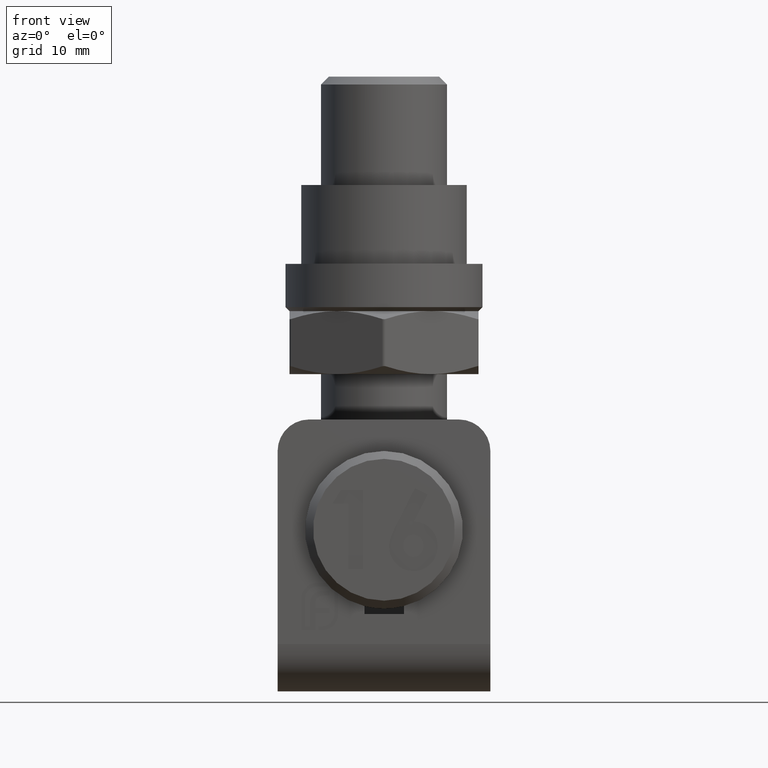
[diagram: clean part render]
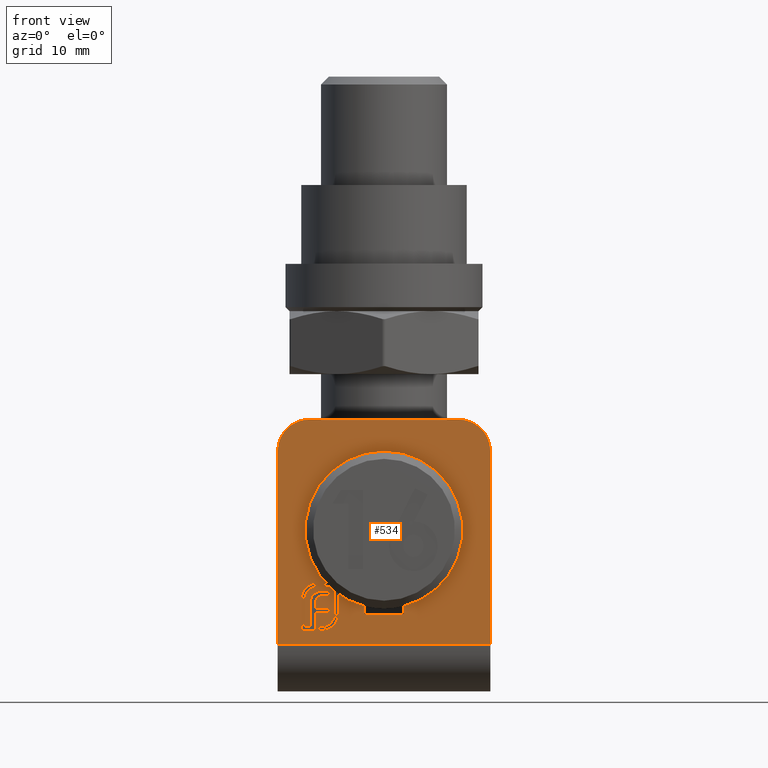
[diagram: same view with one face highlighted and labeled with its STEP entity id]
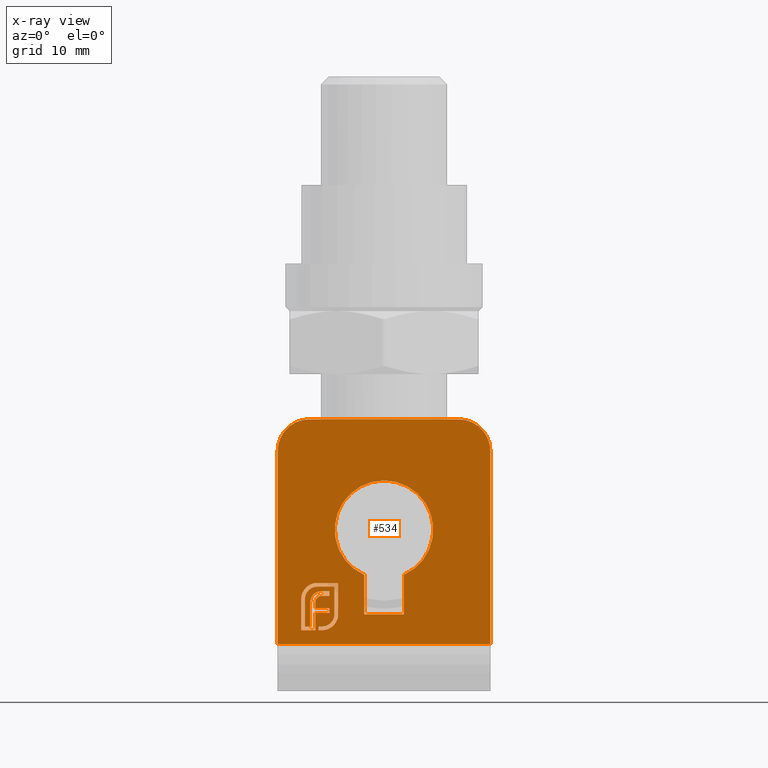
[diagram: x-ray of the same camera — body ghosted, the highlighted face saturated]
A machine part, front view. The second image highlights one B-rep face of the part: STEP entity #534.
The next image is the same camera in x-ray: the body ghosted, the highlighted face saturated — about 0% of this face is hidden behind the body in this view.
In plain terms, the highlighted planar face has unit normal (0, 1, 0).
Its self-contained STEP definition (entity closure, byte-faithful):
#5 = EDGE_CURVE ( 'NONE', #18163, #5967, #5241, .T. ) ;
#59 = VECTOR ( 'NONE', #1965, 1000.000000000000000 ) ;
#69 = B_SPLINE_CURVE_WITH_KNOTS ( 'NONE', 3,
 ( #2250, #14097, #3954, #9031, #15822, #3728, #5652, #19009, #394, #19090, #2113 ),
 .UNSPECIFIED., .F., .F.,
 ( 4, 1, 1, 1, 1, 1, 1, 1, 4 ),
 ( 0.000000000000000000, 0.1299413980652468770, 0.2553168128651460700, 0.3785843888810161983, 0.5009025839210318187, 0.6227719332849922518, 0.7450330940261352675, 0.8710940694072583090, 1.000000000000000000 ),
 .UNSPECIFIED. ) ;
#76 = CARTESIAN_POINT ( 'NONE',  ( -6.755556333100069644, -17.75000000000000355, -11.07417774667600163 ) ) ;
#116 = CARTESIAN_POINT ( 'NONE',  ( -10.26586670113579558, -17.75000000000000000, -7.083426976489406002 ) ) ;
#122 = CARTESIAN_POINT ( 'NONE',  ( -7.821599020293910520, -17.75000000000000355, -9.817704688593424933 ) ) ;
#124 = EDGE_CURVE ( 'NONE', #4884, #5236, #16393, .T. ) ;
#151 = ORIENTED_EDGE ( 'NONE', *, *, #12824, .T. ) ;
#164 = VECTOR ( 'NONE', #626, 1000.000000000000000 ) ;
#165 = FACE_OUTER_BOUND ( 'NONE', #11936, .T. ) ;
#183 = EDGE_CURVE ( 'NONE', #16525, #11652, #17194, .T. ) ;
#263 = EDGE_CURVE ( 'NONE', #7105, #9878, #6792, .T. ) ;
#282 = EDGE_CURVE ( 'NONE', #19448, #9444, #5753, .T. ) ;
#305 = ORIENTED_EDGE ( 'NONE', *, *, #19920, .T. ) ;
#324 = CARTESIAN_POINT ( 'NONE',  ( -8.730888733379986277, -17.75000000000000711, -9.213960811756479075 ) ) ;
#336 = CARTESIAN_POINT ( 'NONE',  ( -10.37757993741442952, -17.75000000000000711, -7.336567777588414607 ) ) ;
#394 = CARTESIAN_POINT ( 'NONE',  ( -10.02493872664897623, -17.75000000000000355, -7.875133732163876132 ) ) ;
#399 = EDGE_LOOP ( 'NONE', ( #11387, #439, #16423, #3491, #9257, #9169, #20864, #14989, #5272, #17474, #10705, #19052, #10754, #305, #21909, #9624, #17256, #13965, #20087, #14690, #14420, #151, #3705, #18915, #20812, #1482, #10161, #6999, #1714, #17720, #2109, #16968, #13169, #13153, #17973, #16271, #20466, #21476, #16826, #4911, #14795, #16105 ) ) ;
#418 = CARTESIAN_POINT ( 'NONE',  ( -8.664758572428270966, -17.75000000000000355, -8.222008397480760067 ) ) ;
#439 = ORIENTED_EDGE ( 'NONE', *, *, #13757, .T. ) ;
#534 = ADVANCED_FACE ( 'NONE', ( #165, #19796, #17688 ), #3106, .F. ) ;
#533 = CARTESIAN_POINT ( 'NONE',  ( -9.277074877536737318, -17.75000000000000355, -7.990552834149759143 ) ) ;
#626 = DIRECTION ( 'NONE',  ( 0.000000000000000000, 9.769142254860440022E-14, -1.000000000000000000 ) ) ;
#642 = EDGE_CURVE ( 'NONE', #21651, #14724, #2030, .T. ) ;
#767 = CARTESIAN_POINT ( 'NONE',  ( -8.617741513626178573, -17.75000000000000355, -6.473410785245657273 ) ) ;
#768 = CARTESIAN_POINT ( 'NONE',  ( -2.499999999999999556, -17.75000000000000355, -4.978219618694800452 ) ) ;
#836 = CARTESIAN_POINT ( 'NONE',  ( -9.328044631410703502, -17.74999999999999645, -6.729548657697040248 ) ) ;
#911 = ORIENTED_EDGE ( 'NONE', *, *, #7050, .T. ) ;
#964 = CARTESIAN_POINT ( 'NONE',  ( -6.085682295311405809, -17.75000000000000355, -10.96641007697690995 ) ) ;
#1029 = VERTEX_POINT ( 'NONE', #11208 ) ;
#1175 = DIRECTION ( 'NONE',  ( 0.000000000000000000, 0.000000000000000000, 1.000000000000000000 ) ) ;
#1183 = CARTESIAN_POINT ( 'NONE',  ( -5.821161651504548118, -17.75000000000000355, -5.998075577326805963 ) ) ;
#1213 = DIRECTION ( 'NONE',  ( -1.000000000000000000, 1.049278242188772596E-13, 0.000000000000000000 ) ) ;
#1267 = VECTOR ( 'NONE', #9837, 1000.000000000000000 ) ;
#1271 = CARTESIAN_POINT ( 'NONE',  ( -7.863848845346394612, -17.75000000000000355, -12.00000000000000355 ) ) ;
#1280 = CARTESIAN_POINT ( 'NONE',  ( -7.122531041991387646, -17.75000000000000355, -11.35362514467191808 ) ) ;
#1391 = B_SPLINE_CURVE_WITH_KNOTS ( 'NONE', 3,
 ( #16208, #19744, #12993, #19677, #15140, #10014, #6387 ),
 .UNSPECIFIED., .F., .F.,
 ( 4, 1, 1, 1, 4 ),
 ( 0.000000000000000000, 0.2556552308366630277, 0.5046914247193104996, 0.7519143346677191753, 1.000000000000000000 ),
 .UNSPECIFIED. ) ;
#1482 = ORIENTED_EDGE ( 'NONE', *, *, #15015, .T. ) ;
#1624 = CARTESIAN_POINT ( 'NONE',  ( -7.248474301829343602, -17.75000000000000000, -11.90345918669857639 ) ) ;
#1672 = CARTESIAN_POINT ( 'NONE',  ( -6.788621413575927299, -17.75000000000000355, -11.69384184744576949 ) ) ;
#1703 = CARTESIAN_POINT ( 'NONE',  ( -6.406890167705846295, -17.75000000000000711, -10.56668142725440696 ) ) ;
#1714 = ORIENTED_EDGE ( 'NONE', *, *, #12294, .T. ) ;
#1871 = CARTESIAN_POINT ( 'NONE',  ( -9.466892932120362758, -17.75000000000000000, -6.262596221133663654 ) ) ;
#1883 = CARTESIAN_POINT ( 'NONE',  ( 13.50000000000000000, -17.75000000000000000, -13.75000000000001243 ) ) ;
#1931 = CARTESIAN_POINT ( 'NONE',  ( -9.540041391318965225, -17.75000000000000711, -6.308552805227909843 ) ) ;
#1935 = CARTESIAN_POINT ( 'NONE',  ( -8.161434569629109959, -17.75000000000000355, -7.701539538138562513 ) ) ;
#1965 = DIRECTION ( 'NONE',  ( -0.000000000000000000, 1.005636797667713793E-16, -1.000000000000000000 ) ) ;
#1967 = CARTESIAN_POINT ( 'NONE',  ( -7.731588523442967542, -17.75000000000000355, -7.635409377186848090 ) ) ;
#2030 = B_SPLINE_CURVE_WITH_KNOTS ( 'NONE', 3,
 ( #7002, #17144, #15254, #3470, #8640, #18761, #6924 ),
 .UNSPECIFIED., .F., .F.,
 ( 4, 1, 1, 1, 4 ),
 ( 0.000000000000000000, 0.2272979020928524163, 0.4678675333846092355, 0.7258957337886734473, 1.000000000000000000 ),
 .UNSPECIFIED. ) ;
#2104 = VERTEX_POINT ( 'NONE', #2149 ) ;
#2109 = ORIENTED_EDGE ( 'NONE', *, *, #5331, .T. ) ;
#2113 = CARTESIAN_POINT ( 'NONE',  ( -10.02899930020993757, -17.75000000000000355, -8.032190342897134627 ) ) ;
#2149 = CARTESIAN_POINT ( 'NONE',  ( -8.301042687193843861, -17.75000000000000711, -11.52851644506648654 ) ) ;
#2167 = DIRECTION ( 'NONE',  ( 1.000000000000000000, 0.000000000000000000, 0.000000000000000000 ) ) ;
#2228 = CARTESIAN_POINT ( 'NONE',  ( -8.161434569629109959, -17.75000000000000355, -7.701539538138562513 ) ) ;
#2244 = VERTEX_POINT ( 'NONE', #3089 ) ;
#2250 = CARTESIAN_POINT ( 'NONE',  ( -9.566088173547935725, -17.75000000000000355, -6.932470258922326600 ) ) ;
#2332 = VERTEX_POINT ( 'NONE', #5443 ) ;
#2386 = VERTEX_POINT ( 'NONE', #324 ) ;
#2396 = CARTESIAN_POINT ( 'NONE',  ( -8.730888733379984501, -17.75000000000000355, -9.817704688593424933 ) ) ;
#2417 = LINE ( 'NONE', #9270, #19912 ) ;
#2444 = LINE ( 'NONE', #3861, #5635 ) ;
#2454 = EDGE_CURVE ( 'NONE', #5157, #3220, #7115, .T. ) ;
#2463 = CARTESIAN_POINT ( 'NONE',  ( -5.821161651504548118, -17.75000000000000355, -7.981980405878238649 ) ) ;
#2565 = VECTOR ( 'NONE', #16144, 1000.000000000000000 ) ;
#2566 = CARTESIAN_POINT ( 'NONE',  ( 2.499999999999999556, -17.75000000000000355, -4.978219618694800452 ) ) ;
#2577 = VERTEX_POINT ( 'NONE', #2396 ) ;
#2588 = VERTEX_POINT ( 'NONE', #12974 ) ;
#2603 = ORIENTED_EDGE ( 'NONE', *, *, #19382, .F. ) ;
#2606 = LINE ( 'NONE', #16303, #11047 ) ;
#2628 = LINE ( 'NONE', #14732, #3435 ) ;
#2637 = CARTESIAN_POINT ( 'NONE',  ( -8.730302266119048582, -17.75000000000000711, -8.613038462690964181 ) ) ;
#2712 = CARTESIAN_POINT ( 'NONE',  ( -7.293170048985303744, -17.75000000000000355, -11.91672498250525258 ) ) ;
#2731 = CARTESIAN_POINT ( 'NONE',  ( -6.755556333100069644, -17.75000000000000355, -11.07417774667600163 ) ) ;
#2740 = CARTESIAN_POINT ( 'NONE',  ( 13.50000000000000000, -17.75000000000000000, -19.75000000000001421 ) ) ;
#2796 = VERTEX_POINT ( 'NONE', #18686 ) ;
#2808 = CARTESIAN_POINT ( 'NONE',  ( -7.810305500201184969, -17.75000000000000711, -11.52704658514475433 ) ) ;
#2837 = VECTOR ( 'NONE', #6723, 1000.000000000000000 ) ;
#2956 = CARTESIAN_POINT ( 'NONE',  ( -10.50048285514345636, -17.75000000000000355, -10.01609517144856909 ) ) ;
#3027 = B_SPLINE_CURVE_WITH_KNOTS ( 'NONE', 3,
 ( #3751, #17350, #14119, #5674, #17426, #20707, #418 ),
 .UNSPECIFIED., .F., .F.,
 ( 4, 1, 1, 1, 4 ),
 ( 0.000000000000000000, 0.2455219258146091321, 0.4921953144302168015, 0.7406999461853225331, 0.9999999999999998890 ),
 .UNSPECIFIED. ) ;
#3084 = VERTEX_POINT ( 'NONE', #3383 ) ;
#3089 = CARTESIAN_POINT ( 'NONE',  ( 13.50000000000000000, -17.75000000000000355, 10.75000000000000178 ) ) ;
#3092 = CARTESIAN_POINT ( 'NONE',  ( -9.384842547235829002, -17.75000000000000355, -8.751049685094475450 ) ) ;
#3101 = EDGE_CURVE ( 'NONE', #11138, #13826, #10722, .T. ) ;
#3106 = PLANE ( 'NONE',  #13910 ) ;
#3175 = CARTESIAN_POINT ( 'NONE',  ( -6.296649209880341935, -17.75000000000000355, -10.12295973285852746 ) ) ;
#3180 = CARTESIAN_POINT ( 'NONE',  ( -7.339108003671981351, -17.75000000000000000, -11.92978154989058304 ) ) ;
#3210 = VECTOR ( 'NONE', #18835, 1000.000000000000000 ) ;
#3220 = VERTEX_POINT ( 'NONE', #15161 ) ;
#3281 = VECTOR ( 'NONE', #21085, 1000.000000000000000 ) ;
#3335 = CARTESIAN_POINT ( 'NONE',  ( -9.220122762487115153, -17.75000000000000355, -7.836782695566828494 ) ) ;
#3383 = CARTESIAN_POINT ( 'NONE',  ( -10.41720783764870539, -17.75000000000000355, -7.470083974807561589 ) ) ;
#3413 = VECTOR ( 'NONE', #2167, 1000.000000000000000 ) ;
#3429 = CARTESIAN_POINT ( 'NONE',  ( -5.821161651504548118, -17.75000000000000355, -9.965885234429674000 ) ) ;
#3435 = VECTOR ( 'NONE', #21346, 1000.000000000000000 ) ;
#3470 = CARTESIAN_POINT ( 'NONE',  ( -8.037234379043823651, -17.75000000000000355, -7.046654734836388378 ) ) ;
#3491 = ORIENTED_EDGE ( 'NONE', *, *, #20658, .T. ) ;
#3548 = DIRECTION ( 'NONE',  ( 1.000000000000000000, -0.000000000000000000, -0.000000000000000000 ) ) ;
#3594 = EDGE_CURVE ( 'NONE', #2332, #4621, #20123, .T. ) ;
#3686 = VECTOR ( 'NONE', #18419, 1000.000000000000000 ) ;
#3702 = CARTESIAN_POINT ( 'NONE',  ( -8.833224457386100070, -17.75000000000000711, -7.348816899581506412 ) ) ;
#3705 = ORIENTED_EDGE ( 'NONE', *, *, #642, .T. ) ;
#3728 = CARTESIAN_POINT ( 'NONE',  ( -9.916607279024331589, -17.75000000000000355, -7.433212829497058749 ) ) ;
#3751 = CARTESIAN_POINT ( 'NONE',  ( -8.466368089573128586, -17.75000000000000711, -7.899930020993705782 ) ) ;
#3861 = CARTESIAN_POINT ( 'NONE',  ( -10.02899930020993580, -17.75000000000000000, -9.780353393981805254 ) ) ;
#3882 = CIRCLE ( 'NONE', #9413, 4.000000000000000000 ) ;
#3891 = EDGE_CURVE ( 'NONE', #2104, #14562, #2606, .T. ) ;
#3954 = CARTESIAN_POINT ( 'NONE',  ( -9.676463377731469251, -17.75000000000000355, -7.045108110135097412 ) ) ;
#4134 = DIRECTION ( 'NONE',  ( 0.000000000000000000, 0.000000000000000000, 1.000000000000000000 ) ) ;
#4143 = CARTESIAN_POINT ( 'NONE',  ( -9.384842547235829002, -17.75000000000000355, -11.52851644506648476 ) ) ;
#4155 = CARTESIAN_POINT ( 'NONE',  ( -9.063188098163522000, -17.75000000000000000, -6.583575515572735348 ) ) ;
#4201 = B_SPLINE_CURVE_WITH_KNOTS ( 'NONE', 3,
 ( #11660, #16830, #16911, #6484, #18531, #1703, #11594, #8124, #3175, #13390, #16699 ),
 .UNSPECIFIED., .F., .F.,
 ( 4, 1, 1, 1, 1, 1, 1, 1, 4 ),
 ( 0.000000000000000000, 0.1306449944096421123, 0.2560864575269015120, 0.3794856402491265657, 0.5015567681336506878, 0.6239904245018632611, 0.7465085164980392873, 0.8718400121249293422, 1.000000000000000000 ),
 .UNSPECIFIED. ) ;
#4215 = LINE ( 'NONE', #17328, #17254 ) ;
#4218 = VERTEX_POINT ( 'NONE', #21535 ) ;
#4264 = EDGE_CURVE ( 'NONE', #2244, #16278, #17212, .T. ) ;
#4319 = CARTESIAN_POINT ( 'NONE',  ( -8.664758572428270966, -17.75000000000000355, -8.222008397480760067 ) ) ;
#4342 = LINE ( 'NONE', #2740, #21622 ) ;
#4361 = CARTESIAN_POINT ( 'NONE',  ( -6.868665694668743882, -17.75000000000000355, -11.18262136189365741 ) ) ;
#4397 = VERTEX_POINT ( 'NONE', #1672 ) ;
#4416 = VERTEX_POINT ( 'NONE', #4832 ) ;
#4519 = CARTESIAN_POINT ( 'NONE',  ( 0.000000000000000000, -17.75000000000000355, 0.7500000000000006661 ) ) ;
#4521 = CARTESIAN_POINT ( 'NONE',  ( -9.942662701189640018, -17.75000000000000355, -12.00000000000000355 ) ) ;
#4553 = CARTESIAN_POINT ( 'NONE',  ( -8.400237928621413275, -17.75000000000000355, -7.130860741777470757 ) ) ;
#4586 = VECTOR ( 'NONE', #9131, 1000.000000000000000 ) ;
#4621 = VERTEX_POINT ( 'NONE', #14574 ) ;
#4636 = CARTESIAN_POINT ( 'NONE',  ( -7.623820853743875858, -17.75000000000000355, -7.023093072078379961 ) ) ;
#4650 = CARTESIAN_POINT ( 'NONE',  ( -7.401004846292215333, -17.75000000000000711, -11.46791200578304171 ) ) ;
#4651 = VERTEX_POINT ( 'NONE', #9876 ) ;
#4663 = VERTEX_POINT ( 'NONE', #19216 ) ;
#4716 = EDGE_CURVE ( 'NONE', #16278, #2588, #15852, .T. ) ;
#4730 = CARTESIAN_POINT ( 'NONE',  ( -8.082445766270121013, -17.75000000000000711, -12.00000000000000533 ) ) ;
#4737 = B_SPLINE_CURVE_WITH_KNOTS ( 'NONE', 3,
 ( #5344, #12121, #3702, #15570, #17299, #8787, #11056 ),
 .UNSPECIFIED., .F., .F.,
 ( 4, 1, 1, 1, 4 ),
 ( 0.000000000000000000, 0.2388191941079593761, 0.4814904364426349503, 0.7358073612774035377, 1.000000000000000000 ),
 .UNSPECIFIED. ) ;
#4738 = DIRECTION ( 'NONE',  ( -0.000000000000000000, 1.000000000000000000, 1.005636797667713793E-16 ) ) ;
#4832 = CARTESIAN_POINT ( 'NONE',  ( -8.730888733379984501, -17.75000000000000355, -11.52851644506648476 ) ) ;
#4867 = CARTESIAN_POINT ( 'NONE',  ( -7.430978871658751927, -17.75000000000000355, -11.95589325178936413 ) ) ;
#4884 = VERTEX_POINT ( 'NONE', #9001 ) ;
#4911 = ORIENTED_EDGE ( 'NONE', *, *, #6148, .T. ) ;
#5033 = VECTOR ( 'NONE', #18171, 1000.000000000000000 ) ;
#5157 = VERTEX_POINT ( 'NONE', #19104 ) ;
#5170 = CARTESIAN_POINT ( 'NONE',  ( 9.500000000000000000, -17.75000000000000355, 14.75000000000000355 ) ) ;
#5176 = CARTESIAN_POINT ( 'NONE',  ( -8.062550847223667105, -17.75000000000000000, -7.669126878879471754 ) ) ;
#5189 = CARTESIAN_POINT ( 'NONE',  ( -10.50048285514345636, -17.75000000000000355, -8.032190342897134627 ) ) ;
#5201 = CARTESIAN_POINT ( 'NONE',  ( -8.946424072778164316, -17.75000000000000355, -7.452939118264524154 ) ) ;
#5236 = VERTEX_POINT ( 'NONE', #768 ) ;
#5241 = LINE ( 'NONE', #2463, #14494 ) ;
#5270 = EDGE_CURVE ( 'NONE', #4397, #9879, #12659, .T. ) ;
#5272 = ORIENTED_EDGE ( 'NONE', *, *, #7339, .T. ) ;
#5331 = EDGE_CURVE ( 'NONE', #4663, #2386, #10506, .T. ) ;
#5344 = CARTESIAN_POINT ( 'NONE',  ( -8.946424072778164316, -17.75000000000000355, -7.452939118264524154 ) ) ;
#5443 = CARTESIAN_POINT ( 'NONE',  ( -8.723540937718686550, -17.75000000000000711, -12.00000000000000533 ) ) ;
#5529 = EDGE_CURVE ( 'NONE', #2588, #19007, #3882, .T. ) ;
#5539 = CARTESIAN_POINT ( 'NONE',  ( -10.02899930020993757, -17.75000000000000355, -8.032190342897134627 ) ) ;
#5626 = CARTESIAN_POINT ( 'NONE',  ( -10.45638291017541910, -17.75000000000000355, -7.606655400040919446 ) ) ;
#5635 = VECTOR ( 'NONE', #5641, 1000.000000000000000 ) ;
#5641 = DIRECTION ( 'NONE',  ( -1.679674656468082971E-14, 0.000000000000000000, -1.000000000000000000 ) ) ;
#5652 = CARTESIAN_POINT ( 'NONE',  ( -9.966620311571347202, -17.75000000000000711, -7.574853533517645232 ) ) ;
#5658 = LINE ( 'NONE', #122, #14409 ) ;
#5668 = LINE ( 'NONE', #7368, #4586 ) ;
#5674 = CARTESIAN_POINT ( 'NONE',  ( -8.584042568921914196, -17.75000000000000355, -8.046340680819405122 ) ) ;
#5699 = CARTESIAN_POINT ( 'NONE',  ( -8.327818283931977206, -17.75000000000000000, -7.783925783482635197 ) ) ;
#5753 = LINE ( 'NONE', #4730, #1267 ) ;
#5804 = CARTESIAN_POINT ( 'NONE',  ( -6.912309307207837428, -17.75000000000000355, -9.213960811756477298 ) ) ;
#5818 = DIRECTION ( 'NONE',  ( -1.000000000000000000, 0.000000000000000000, 0.000000000000000000 ) ) ;
#5826 = EDGE_CURVE ( 'NONE', #10711, #17075, #19516, .T. ) ;
#5863 = CARTESIAN_POINT ( 'NONE',  ( -9.453382333619950728, -17.75000000000000711, -6.821635180734846315 ) ) ;
#5888 = EDGE_LOOP ( 'NONE', ( #911, #17219, #11014, #6579 ) ) ;
#5907 = DIRECTION ( 'NONE',  ( -8.398373282340697265E-15, -3.359349312936278906E-14, 1.000000000000000000 ) ) ;
#5919 = CARTESIAN_POINT ( 'NONE',  ( -9.566088173547935725, -17.75000000000000355, -6.932470258922326600 ) ) ;
#5967 = VERTEX_POINT ( 'NONE', #3429 ) ;
#5997 = VECTOR ( 'NONE', #18773, 1000.000000000000000 ) ;
#6098 = DIRECTION ( 'NONE',  ( 8.670530009976833916E-17, -0.000000000000000000, -1.000000000000000000 ) ) ;
#6148 = EDGE_CURVE ( 'NONE', #7449, #3084, #19652, .T. ) ;
#6187 = VERTEX_POINT ( 'NONE', #19260 ) ;
#6344 = LINE ( 'NONE', #2956, #5033 ) ;
#6387 = CARTESIAN_POINT ( 'NONE',  ( -6.085682295311405809, -17.75000000000000355, -10.96641007697690995 ) ) ;
#6473 = B_SPLINE_CURVE_WITH_KNOTS ( 'NONE', 3,
 ( #8626, #20265, #16832, #11726, #8327, #1931, #18600 ),
 .UNSPECIFIED., .F., .F.,
 ( 4, 1, 1, 1, 4 ),
 ( 0.000000000000000000, 0.2502580117964922080, 0.4972880217287840576, 0.7465323960068208642, 1.000000000000000000 ),
 .UNSPECIFIED. ) ;
#6484 = CARTESIAN_POINT ( 'NONE',  ( -6.552190294746984556, -17.75000000000000711, -10.83358292851261950 ) ) ;
#6509 = CARTESIAN_POINT ( 'NONE',  ( -13.50000000000000000, -17.75000000000000000, -13.75000000000001243 ) ) ;
#6578 = DIRECTION ( 'NONE',  ( -1.000000000000000000, 0.000000000000000000, 0.000000000000000000 ) ) ;
#6579 = ORIENTED_EDGE ( 'NONE', *, *, #5826, .T. ) ;
#6688 = CARTESIAN_POINT ( 'NONE',  ( -9.706920923722883288, -17.75000000000000355, -11.52851644506648654 ) ) ;
#6723 = DIRECTION ( 'NONE',  ( -1.000000000000000000, -0.000000000000000000, -0.000000000000000000 ) ) ;
#6739 = EDGE_CURVE ( 'NONE', #17551, #21740, #19359, .T. ) ;
#6792 = LINE ( 'NONE', #19705, #12088 ) ;
#6854 = CARTESIAN_POINT ( 'NONE',  ( -7.846333194691609059, -17.74999999999999645, -7.636505062055402249 ) ) ;
#6904 = CARTESIAN_POINT ( 'NONE',  ( -10.40394204184203097, -17.75000000000000711, -7.425388227651603223 ) ) ;
#6920 = CARTESIAN_POINT ( 'NONE',  ( -8.466368089573128586, -17.75000000000000711, -7.899930020993705782 ) ) ;
#6924 = CARTESIAN_POINT ( 'NONE',  ( -7.623820853743875858, -17.75000000000000355, -7.023093072078379961 ) ) ;
#6985 = VECTOR ( 'NONE', #10177, 1000.000000000000000 ) ;
#6999 = ORIENTED_EDGE ( 'NONE', *, *, #18040, .T. ) ;
#7002 = CARTESIAN_POINT ( 'NONE',  ( -8.400237928621413275, -17.75000000000000355, -7.130860741777470757 ) ) ;
#7050 = EDGE_CURVE ( 'NONE', #17075, #4884, #8296, .T. ) ;
#7077 = EDGE_CURVE ( 'NONE', #9879, #19448, #14377, .T. ) ;
#7105 = VERTEX_POINT ( 'NONE', #9978 ) ;
#7115 = B_SPLINE_CURVE_WITH_KNOTS ( 'NONE', 3,
 ( #12589, #21150, #767, #19427, #12517, #4155, #20994, #836, #5863, #9173, #5919 ),
 .UNSPECIFIED., .F., .F.,
 ( 4, 1, 1, 1, 1, 1, 1, 1, 4 ),
 ( 0.000000000000000000, 0.1301749492335597946, 0.2555374942785390568, 0.3790510438838181062, 0.5015150317641996480, 0.6227213693748332446, 0.7453059916511168836, 0.8707785314296303536, 1.000000000000000000 ),
 .UNSPECIFIED. ) ;
#7339 = EDGE_CURVE ( 'NONE', #9444, #2104, #5668, .T. ) ;
#7368 = CARTESIAN_POINT ( 'NONE',  ( -8.301042687193842085, -17.75000000000000355, -11.76425822253324505 ) ) ;
#7382 = CARTESIAN_POINT ( 'NONE',  ( -10.48097907931054884, -17.75000000000000000, -7.746992686877971046 ) ) ;
#7392 = CARTESIAN_POINT ( 'NONE',  ( -8.466368089573128586, -17.75000000000000711, -7.899930020993705782 ) ) ;
#7438 = VECTOR ( 'NONE', #9439, 1000.000000000000000 ) ;
#7449 = VERTEX_POINT ( 'NONE', #11514 ) ;
#7593 = LINE ( 'NONE', #14126, #2565 ) ;
#7676 = CARTESIAN_POINT ( 'NONE',  ( -8.459020293911827082, -17.75000000000000355, -5.998075577326805963 ) ) ;
#7679 = CARTESIAN_POINT ( 'NONE',  ( 9.500000000000000000, -17.75000000000000355, 10.75000000000000178 ) ) ;
#7723 = CARTESIAN_POINT ( 'NONE',  ( -8.730888733379984501, -17.75000000000000355, -8.651854443666904260 ) ) ;
#7766 = CARTESIAN_POINT ( 'NONE',  ( -6.793556041678007418, -17.75000000000000711, -11.11060997225183833 ) ) ;
#7799 = CARTESIAN_POINT ( 'NONE',  ( -8.696524016184479677, -17.75000000000000355, -8.320681102242794225 ) ) ;
#7988 = CARTESIAN_POINT ( 'NONE',  ( -6.993612215726181525, -17.74999999999999645, -11.27345663500204864 ) ) ;
#8054 = CARTESIAN_POINT ( 'NONE',  ( -7.572929676215229833, -17.75000000000000711, -11.98060464777251255 ) ) ;
#8124 = CARTESIAN_POINT ( 'NONE',  ( -6.319826060438183291, -17.75000000000000355, -10.27619761759197381 ) ) ;
#8201 = CARTESIAN_POINT ( 'NONE',  ( -7.293170048985303744, -17.75000000000000355, -11.91672498250525258 ) ) ;
#8210 = DIRECTION ( 'NONE',  ( 0.000000000000000000, -1.005636797667713793E-16, 1.000000000000000000 ) ) ;
#8246 = CARTESIAN_POINT ( 'NONE',  ( -6.788621413575927299, -17.75000000000000355, -11.69384184744576949 ) ) ;
#8276 = DIRECTION ( 'NONE',  ( -0.000000000000000000, 1.005636797667713793E-16, -1.000000000000000000 ) ) ;
#8296 = LINE ( 'NONE', #19880, #3281 ) ;
#8327 = CARTESIAN_POINT ( 'NONE',  ( -9.685119523797823149, -17.75000000000000355, -6.399700253424986052 ) ) ;
#8352 = CARTESIAN_POINT ( 'NONE',  ( -8.982167132013293198, -17.75000000000000355, -7.490018907292856021 ) ) ;
#8474 = CARTESIAN_POINT ( 'NONE',  ( -10.21815855270441986, -17.75000000000000355, -7.004810334021633444 ) ) ;
#8504 = EDGE_CURVE ( 'NONE', #9635, #2577, #5658, .T. ) ;
#8607 = EDGE_CURVE ( 'NONE', #3084, #2796, #21216, .T. ) ;
#8626 = CARTESIAN_POINT ( 'NONE',  ( -10.19432470258922230, -17.75000000000000355, -6.965535339398184256 ) ) ;
#8631 = CARTESIAN_POINT ( 'NONE',  ( -8.988128607820351945, -17.75000000000000711, -6.058217337289924842 ) ) ;
#8640 = CARTESIAN_POINT ( 'NONE',  ( -7.835263971533207972, -17.75000000000000355, -7.027688339224696712 ) ) ;
#8767 = CARTESIAN_POINT ( 'NONE',  ( -10.41720783764870539, -17.75000000000000355, -7.470083974807561589 ) ) ;
#8787 = CARTESIAN_POINT ( 'NONE',  ( -8.453440150458531477, -17.75000000000000711, -7.149582174132054213 ) ) ;
#8942 = CARTESIAN_POINT ( 'NONE',  ( -9.384842547235829002, -17.75000000000000355, -8.751049685094475450 ) ) ;
#9001 = CARTESIAN_POINT ( 'NONE',  ( -2.500000000000000000, -17.75000000000000355, -9.980000000000007532 ) ) ;
#9014 = CARTESIAN_POINT ( 'NONE',  ( -8.190847893842448713, -17.75000000000000355, -7.712916249222200982 ) ) ;
#9031 = CARTESIAN_POINT ( 'NONE',  ( -9.769521353321801271, -17.75000000000000711, -7.169346592754720859 ) ) ;
#9099 = VERTEX_POINT ( 'NONE', #5804 ) ;
#9131 = DIRECTION ( 'NONE',  ( 5.902190112311574406E-14, 1.180438022462314881E-13, 1.000000000000000000 ) ) ;
#9169 = ORIENTED_EDGE ( 'NONE', *, *, #5270, .T. ) ;
#9173 = CARTESIAN_POINT ( 'NONE',  ( -9.528152703301145721, -17.75000000000000000, -6.895164465242352492 ) ) ;
#9257 = ORIENTED_EDGE ( 'NONE', *, *, #12144, .T. ) ;
#9270 = CARTESIAN_POINT ( 'NONE',  ( -7.321948915325400264, -17.75000000000000000, -7.635409377186847202 ) ) ;
#9413 = AXIS2_PLACEMENT_3D ( 'NONE', #14648, #18376, #1175 ) ;
#9439 = DIRECTION ( 'NONE',  ( 0.000000000000000000, 0.000000000000000000, 1.000000000000000000 ) ) ;
#9444 = VERTEX_POINT ( 'NONE', #18565 ) ;
#9566 = EDGE_CURVE ( 'NONE', #12936, #11138, #2444, .T. ) ;
#9624 = ORIENTED_EDGE ( 'NONE', *, *, #11907, .T. ) ;
#9635 = VERTEX_POINT ( 'NONE', #10602 ) ;
#9722 = CARTESIAN_POINT ( 'NONE',  ( -8.675215145164512975, -17.75000000000000711, -8.254489552862832369 ) ) ;
#9764 = LINE ( 'NONE', #12277, #3413 ) ;
#9830 = VECTOR ( 'NONE', #19625, 1000.000000000000000 ) ;
#9837 = DIRECTION ( 'NONE',  ( -1.000000000000000000, -1.307562117189005772E-13, -6.537810585945028861E-14 ) ) ;
#9846 = CARTESIAN_POINT ( 'NONE',  ( 13.50000000000000000, -17.75000000000000000, -19.75000000000001421 ) ) ;
#9876 = CARTESIAN_POINT ( 'NONE',  ( -8.664758572428270966, -17.75000000000000355, -8.222008397480760067 ) ) ;
#9878 = VERTEX_POINT ( 'NONE', #13089 ) ;
#9879 = VERTEX_POINT ( 'NONE', #2712 ) ;
#9884 = CARTESIAN_POINT ( 'NONE',  ( -6.906513050667147269, -17.75000000000000000, -11.76538384599234455 ) ) ;
#9978 = CARTESIAN_POINT ( 'NONE',  ( -6.292645206438068683, -17.75000000000000355, -9.965885234429674000 ) ) ;
#10014 = CARTESIAN_POINT ( 'NONE',  ( -6.045126794699251960, -17.75000000000000000, -10.88982710312204105 ) ) ;
#10101 = EDGE_CURVE ( 'NONE', #4218, #12022, #14092, .T. ) ;
#10148 = ORIENTED_EDGE ( 'NONE', *, *, #4264, .T. ) ;
#10161 = ORIENTED_EDGE ( 'NONE', *, *, #16713, .T. ) ;
#10177 = DIRECTION ( 'NONE',  ( 1.000000000000000000, 0.000000000000000000, -4.336302939657541104E-14 ) ) ;
#10319 = CARTESIAN_POINT ( 'NONE',  ( -13.50000000000000000, -17.75000000000000000, -19.75000000000001421 ) ) ;
#10356 = LINE ( 'NONE', #16377, #9830 ) ;
#10374 = VECTOR ( 'NONE', #13333, 1000.000000000000000 ) ;
#10416 = CARTESIAN_POINT ( 'NONE',  ( -7.731588523442967542, -17.75000000000000355, -7.635409377186848090 ) ) ;
#10504 = CARTESIAN_POINT ( 'NONE',  ( -10.41720783764870539, -17.75000000000000355, -7.470083974807561589 ) ) ;
#10506 = LINE ( 'NONE', #10552, #164 ) ;
#10552 = CARTESIAN_POINT ( 'NONE',  ( -8.730888733379988054, -17.75000000000000711, -8.932907627711692555 ) ) ;
#10602 = CARTESIAN_POINT ( 'NONE',  ( -6.912309307207837428, -17.75000000000000355, -9.817704688593424933 ) ) ;
#10664 = CARTESIAN_POINT ( 'NONE',  ( -9.384036193079163368, -17.75000000000000355, -8.680353457168726194 ) ) ;
#10705 = ORIENTED_EDGE ( 'NONE', *, *, #20005, .T. ) ;
#10711 = VERTEX_POINT ( 'NONE', #2566 ) ;
#10722 = LINE ( 'NONE', #6688, #6985 ) ;
#10754 = ORIENTED_EDGE ( 'NONE', *, *, #263, .T. ) ;
#10866 = B_SPLINE_CURVE_WITH_KNOTS ( 'NONE', 3,
 ( #2228, #9014, #21042, #5699, #21270, #10877, #7392 ),
 .UNSPECIFIED., .F., .F.,
 ( 4, 1, 1, 1, 4 ),
 ( 0.000000000000000000, 0.2571485471612710016, 0.5083415440098223437, 0.7546122201496910931, 1.000000000000000000 ),
 .UNSPECIFIED. ) ;
#10877 = CARTESIAN_POINT ( 'NONE',  ( -8.445396374081706625, -17.75000000000000711, -7.878326199893674442 ) ) ;
#10993 = B_SPLINE_CURVE_WITH_KNOTS ( 'NONE', 3,
 ( #4319, #9722, #7799, #21610, #11270, #2637, #7723 ),
 .UNSPECIFIED., .F., .F.,
 ( 4, 1, 1, 1, 4 ),
 ( 0.000000000000000000, 0.2340869717720978904, 0.4770328878082502611, 0.7336123720772043111, 1.000000000000000000 ),
 .UNSPECIFIED. ) ;
#11014 = ORIENTED_EDGE ( 'NONE', *, *, #15715, .T. ) ;
#11047 = VECTOR ( 'NONE', #21263, 1000.000000000000000 ) ;
#11056 = CARTESIAN_POINT ( 'NONE',  ( -8.400237928621413275, -17.75000000000000355, -7.130860741777470757 ) ) ;
#11138 = VERTEX_POINT ( 'NONE', #13204 ) ;
#11146 = LINE ( 'NONE', #11312, #19141 ) ;
#11162 = CARTESIAN_POINT ( 'NONE',  ( -7.259139959507012740, -17.75000000000000711, -11.41648675173941108 ) ) ;
#11208 = CARTESIAN_POINT ( 'NONE',  ( -8.723540937718684773, -17.75000000000000355, -11.52851644506648476 ) ) ;
#11270 = CARTESIAN_POINT ( 'NONE',  ( -8.729150924773961151, -17.75000000000000711, -8.536835668904450003 ) ) ;
#11312 = CARTESIAN_POINT ( 'NONE',  ( -8.723540937718686550, -17.75000000000000355, -11.76425822253324505 ) ) ;
#11367 = CARTESIAN_POINT ( 'NONE',  ( -9.384842547235830779, -17.75000000000000355, -10.13978306508048277 ) ) ;
#11384 = CARTESIAN_POINT ( 'NONE',  ( -7.549759342559735131, -17.74999999999999645, -11.50297381078894787 ) ) ;
#11387 = ORIENTED_EDGE ( 'NONE', *, *, #10101, .T. ) ;
#11427 = CARTESIAN_POINT ( 'NONE',  ( 2.500000000000000000, -17.75000000000000355, -9.980000000000007532 ) ) ;
#11458 = CARTESIAN_POINT ( 'NONE',  ( -7.863848845346394612, -17.75000000000000355, -11.52851644506648476 ) ) ;
#11514 = CARTESIAN_POINT ( 'NONE',  ( -10.50048285514345636, -17.75000000000000355, -8.032190342897134627 ) ) ;
#11594 = CARTESIAN_POINT ( 'NONE',  ( -6.354550696384753117, -17.75000000000000355, -10.42475154894360934 ) ) ;
#11595 = VERTEX_POINT ( 'NONE', #19644 ) ;
#11649 = EDGE_CURVE ( 'NONE', #4621, #7449, #6344, .T. ) ;
#11652 = VERTEX_POINT ( 'NONE', #16543 ) ;
#11660 = CARTESIAN_POINT ( 'NONE',  ( -6.755556333100069644, -17.75000000000000355, -11.07417774667600163 ) ) ;
#11726 = CARTESIAN_POINT ( 'NONE',  ( -9.878549671360717710, -17.75000000000000355, -6.567388634723149821 ) ) ;
#11810 = CARTESIAN_POINT ( 'NONE',  ( -8.727613047087396936, -17.75000000000000000, -6.008145153962828999 ) ) ;
#11891 = CARTESIAN_POINT ( 'NONE',  ( -8.128985288601770165, -17.75000000000000355, -7.690903131422103911 ) ) ;
#11894 = ORIENTED_EDGE ( 'NONE', *, *, #5529, .T. ) ;
#11906 = CARTESIAN_POINT ( 'NONE',  ( -9.257836264961454731, -17.75000000000000711, -7.938608773437223931 ) ) ;
#11907 = EDGE_CURVE ( 'NONE', #3220, #12936, #69, .T. ) ;
#11935 = LINE ( 'NONE', #11367, #7438 ) ;
#11936 = EDGE_LOOP ( 'NONE', ( #2603, #10148, #14677, #11894, #21056, #16216 ) ) ;
#11943 = CARTESIAN_POINT ( 'NONE',  ( -10.32724805209346997, -17.75000000000000000, -7.207191128377359313 ) ) ;
#11960 = EDGE_CURVE ( 'NONE', #20837, #6187, #4215, .T. ) ;
#12022 = VERTEX_POINT ( 'NONE', #7676 ) ;
#12026 = CARTESIAN_POINT ( 'NONE',  ( -7.956895859234475843, -17.75000000000000711, -7.651954961540684330 ) ) ;
#12088 = VECTOR ( 'NONE', #5907, 1000.000000000000000 ) ;
#12121 = CARTESIAN_POINT ( 'NONE',  ( -8.908892656044782754, -17.75000000000000711, -7.418417319165985013 ) ) ;
#12144 = EDGE_CURVE ( 'NONE', #15803, #4397, #12967, .T. ) ;
#12193 = CARTESIAN_POINT ( 'NONE',  ( -10.43026732860424843, -17.75000000000000355, -7.515611734619724871 ) ) ;
#12256 = B_SPLINE_CURVE_WITH_KNOTS ( 'NONE', 3,
 ( #11458, #2808, #17948, #11384, #4650, #11162, #1280, #7988, #4361, #7766, #2731 ),
 .UNSPECIFIED., .F., .F.,
 ( 4, 1, 1, 1, 1, 1, 1, 1, 4 ),
 ( 0.000000000000000000, 0.1304902425292578660, 0.2570045222119936579, 0.3808172307134175538, 0.5023049142174768056, 0.6242765738051625490, 0.7466372728324800478, 0.8718179433199507722, 1.000000000000000000 ),
 .UNSPECIFIED. ) ;
#12277 = CARTESIAN_POINT ( 'NONE',  ( -7.140090972708188488, -17.75000000000000355, -5.998075577326805075 ) ) ;
#12294 = EDGE_CURVE ( 'NONE', #16436, #4651, #3027, .T. ) ;
#12421 = CARTESIAN_POINT ( 'NONE',  ( -6.131537612055804942, -17.75000000000000355, -11.04083764331830864 ) ) ;
#12517 = CARTESIAN_POINT ( 'NONE',  ( -8.921194426554215795, -17.75000000000000711, -6.531273296374533466 ) ) ;
#12589 = CARTESIAN_POINT ( 'NONE',  ( -8.459020293911827082, -17.75000000000000355, -6.469559132260325640 ) ) ;
#12659 = B_SPLINE_CURVE_WITH_KNOTS ( 'NONE', 3,
 ( #8246, #19907, #9884, #21711, #20187, #1624, #21785 ),
 .UNSPECIFIED., .F., .F.,
 ( 4, 1, 1, 1, 4 ),
 ( 0.000000000000000000, 0.2488520650224796960, 0.4981264545242570785, 0.7474499050962992719, 1.000000000000000000 ),
 .UNSPECIFIED. ) ;
#12824 = EDGE_CURVE ( 'NONE', #21740, #21651, #4737, .T. ) ;
#12936 = VERTEX_POINT ( 'NONE', #5539 ) ;
#12946 = CARTESIAN_POINT ( 'NONE',  ( -6.576704196016045501, -17.75000000000000355, -11.55535526177070693 ) ) ;
#12967 = B_SPLINE_CURVE_WITH_KNOTS ( 'NONE', 3,
 ( #964, #12421, #21505, #14135, #12946, #18021, #21423 ),
 .UNSPECIFIED., .F., .F.,
 ( 4, 1, 1, 1, 4 ),
 ( 0.000000000000000000, 0.2562051497895829755, 0.5061026040850942209, 0.7520689786812697619, 1.000000000000000000 ),
 .UNSPECIFIED. ) ;
#12974 = CARTESIAN_POINT ( 'NONE',  ( -9.500000000000000000, -17.75000000000000355, 14.75000000000000355 ) ) ;
#12993 = CARTESIAN_POINT ( 'NONE',  ( -5.831241962667206735, -17.75000000000000711, -10.23124653378254578 ) ) ;
#13082 = AXIS2_PLACEMENT_3D ( 'NONE', #7679, #16309, #4134 ) ;
#13089 = CARTESIAN_POINT ( 'NONE',  ( -6.292645206438069572, -17.75000000000000711, -6.469559132260326528 ) ) ;
#13153 = ORIENTED_EDGE ( 'NONE', *, *, #8504, .T. ) ;
#13169 = ORIENTED_EDGE ( 'NONE', *, *, #18195, .T. ) ;
#13204 = CARTESIAN_POINT ( 'NONE',  ( -10.02899930020993757, -17.75000000000000355, -11.52851644506648476 ) ) ;
#13276 = CARTESIAN_POINT ( 'NONE',  ( -7.375832750174947883, -17.75000000000000355, -6.469559132260325640 ) ) ;
#13333 = DIRECTION ( 'NONE',  ( 1.000000000000000000, 0.000000000000000000, -1.931625854938343884E-14 ) ) ;
#13390 = CARTESIAN_POINT ( 'NONE',  ( -6.293989765731295094, -17.75000000000000355, -10.01863143698325587 ) ) ;
#13401 = VECTOR ( 'NONE', #6098, 1000.000000000000000 ) ;
#13498 = CARTESIAN_POINT ( 'NONE',  ( -9.277074877536737318, -17.75000000000000355, -7.990552834149759143 ) ) ;
#13688 = CARTESIAN_POINT ( 'NONE',  ( -9.236458284383470385, -17.74999999999999289, -6.141361441952851941 ) ) ;
#13705 = VECTOR ( 'NONE', #3548, 1000.000000000000000 ) ;
#13757 = EDGE_CURVE ( 'NONE', #12022, #18163, #9764, .T. ) ;
#13826 = VERTEX_POINT ( 'NONE', #4143 ) ;
#13845 = LINE ( 'NONE', #10319, #59 ) ;
#13910 = AXIS2_PLACEMENT_3D ( 'NONE', #9846, #4738, #8210 ) ;
#13965 = ORIENTED_EDGE ( 'NONE', *, *, #3101, .T. ) ;
#14080 = CARTESIAN_POINT ( 'NONE',  ( -9.294240470500298557, -17.75000000000000711, -8.046175886661199428 ) ) ;
#14092 = B_SPLINE_CURVE_WITH_KNOTS ( 'NONE', 3,
 ( #1871, #21954, #13688, #8631, #11810, #16835, #20435 ),
 .UNSPECIFIED., .F., .F.,
 ( 4, 1, 1, 1, 4 ),
 ( 0.000000000000000000, 0.2474395555566214766, 0.4929798653999200031, 0.7426047681273371115, 1.000000000000000000 ),
 .UNSPECIFIED. ) ;
#14097 = CARTESIAN_POINT ( 'NONE',  ( -9.603315954647548836, -17.75000000000000355, -6.970461194472555633 ) ) ;
#14119 = CARTESIAN_POINT ( 'NONE',  ( -8.530827191470978121, -17.75000000000000711, -7.968281207832333735 ) ) ;
#14126 = CARTESIAN_POINT ( 'NONE',  ( -8.727214835549332861, -17.75000000000000355, -11.52851644506648299 ) ) ;
#14135 = CARTESIAN_POINT ( 'NONE',  ( -6.389868758138796068, -17.75000000000000711, -11.38271610899181674 ) ) ;
#14340 = EDGE_CURVE ( 'NONE', #14724, #20837, #14790, .T. ) ;
#14377 = B_SPLINE_CURVE_WITH_KNOTS ( 'NONE', 3,
 ( #8201, #3180, #4867, #8054, #16542, #19858, #1271 ),
 .UNSPECIFIED., .F., .F.,
 ( 4, 1, 1, 1, 4 ),
 ( 0.000000000000000000, 0.2473874333444892604, 0.4947477175549537809, 0.7459427166409735577, 1.000000000000000000 ),
 .UNSPECIFIED. ) ;
#14409 = VECTOR ( 'NONE', #6578, 1000.000000000000000 ) ;
#14420 = ORIENTED_EDGE ( 'NONE', *, *, #6739, .T. ) ;
#14494 = VECTOR ( 'NONE', #17964, 1000.000000000000000 ) ;
#14560 = CARTESIAN_POINT ( 'NONE',  ( 2.500000000000000000, -17.75000000000000355, -9.980000000000007532 ) ) ;
#14562 = VERTEX_POINT ( 'NONE', #16164 ) ;
#14574 = CARTESIAN_POINT ( 'NONE',  ( -10.50048285514345636, -17.75000000000000355, -12.00000000000000355 ) ) ;
#14643 = CARTESIAN_POINT ( 'NONE',  ( -8.946424072778164316, -17.75000000000000355, -7.452939118264524154 ) ) ;
#14648 = CARTESIAN_POINT ( 'NONE',  ( -9.500000000000000000, -17.75000000000000355, 10.75000000000000178 ) ) ;
#14677 = ORIENTED_EDGE ( 'NONE', *, *, #4716, .T. ) ;
#14690 = ORIENTED_EDGE ( 'NONE', *, *, #18000, .T. ) ;
#14724 = VERTEX_POINT ( 'NONE', #4636 ) ;
#14732 = CARTESIAN_POINT ( 'NONE',  ( -6.912309307207837428, -17.75000000000000355, -9.515832750174951116 ) ) ;
#14790 = LINE ( 'NONE', #16939, #10374 ) ;
#14795 = ORIENTED_EDGE ( 'NONE', *, *, #8607, .T. ) ;
#14989 = ORIENTED_EDGE ( 'NONE', *, *, #282, .T. ) ;
#15015 = EDGE_CURVE ( 'NONE', #6187, #17599, #2417, .T. ) ;
#15033 = CARTESIAN_POINT ( 'NONE',  ( -6.912309307207838316, -17.75000000000000711, -7.023093072078380850 ) ) ;
#15140 = CARTESIAN_POINT ( 'NONE',  ( -5.964156831355759358, -17.74999999999999645, -10.73692748427462718 ) ) ;
#15161 = CARTESIAN_POINT ( 'NONE',  ( -9.566088173547935725, -17.75000000000000355, -6.932470258922326600 ) ) ;
#15184 = CARTESIAN_POINT ( 'NONE',  ( -9.054352313862302992, -17.75000000000000355, -7.564903692512985778 ) ) ;
#15254 = CARTESIAN_POINT ( 'NONE',  ( -8.224920149782075640, -17.75000000000000355, -7.080518217537133729 ) ) ;
#15354 = VECTOR ( 'NONE', #1213, 1000.000000000000000 ) ;
#15366 = CARTESIAN_POINT ( 'NONE',  ( -6.085682295311405809, -17.75000000000000355, -10.96641007697690995 ) ) ;
#15413 = B_SPLINE_CURVE_WITH_KNOTS ( 'NONE', 3,
 ( #10416, #15482, #6854, #12026, #5176, #11891, #1935 ),
 .UNSPECIFIED., .F., .F.,
 ( 4, 1, 1, 1, 4 ),
 ( 0.000000000000000000, 0.2664516210972249222, 0.5206311952944926436, 0.7658567945036404145, 1.000000000000000000 ),
 .UNSPECIFIED. ) ;
#15416 = AXIS2_PLACEMENT_3D ( 'NONE', #4519, #16418, #18481 ) ;
#15425 = CARTESIAN_POINT ( 'NONE',  ( -7.863848845346394612, -17.75000000000000355, -12.00000000000000355 ) ) ;
#15482 = CARTESIAN_POINT ( 'NONE',  ( -7.770433106287033098, -17.75000000000000355, -7.635780300047007252 ) ) ;
#15570 = CARTESIAN_POINT ( 'NONE',  ( -8.701928174504695690, -17.75000000000000000, -7.261993628143982527 ) ) ;
#15655 = DIRECTION ( 'NONE',  ( -2.236619410981213033E-14, 0.000000000000000000, -1.000000000000000000 ) ) ;
#15715 = EDGE_CURVE ( 'NONE', #5236, #10711, #20362, .T. ) ;
#15803 = VERTEX_POINT ( 'NONE', #15366 ) ;
#15815 = CARTESIAN_POINT ( 'NONE',  ( -9.277074877536737318, -17.75000000000000355, -7.990552834149759143 ) ) ;
#15822 = CARTESIAN_POINT ( 'NONE',  ( -9.849633339452436687, -17.75000000000000355, -7.298331996335492455 ) ) ;
#15852 = LINE ( 'NONE', #21991, #2837 ) ;
#15868 = CARTESIAN_POINT ( 'NONE',  ( -10.49803755718266984, -17.75000000000000711, -7.888892478474770265 ) ) ;
#16105 = ORIENTED_EDGE ( 'NONE', *, *, #21405, .T. ) ;
#16144 = DIRECTION ( 'NONE',  ( 1.000000000000000000, 8.499153761740205870E-12, 0.000000000000000000 ) ) ;
#16164 = CARTESIAN_POINT ( 'NONE',  ( -7.863848845346394612, -17.75000000000000355, -11.52851644506648476 ) ) ;
#16208 = CARTESIAN_POINT ( 'NONE',  ( -5.821161651504548118, -17.75000000000000355, -9.965885234429674000 ) ) ;
#16216 = ORIENTED_EDGE ( 'NONE', *, *, #183, .T. ) ;
#16271 = ORIENTED_EDGE ( 'NONE', *, *, #16865, .T. ) ;
#16278 = VERTEX_POINT ( 'NONE', #5170 ) ;
#16303 = CARTESIAN_POINT ( 'NONE',  ( -8.082445766270117460, -17.75000000000000355, -11.52851644506648299 ) ) ;
#16309 = DIRECTION ( 'NONE',  ( 0.000000000000000000, -1.000000000000000000, -1.005636797667713793E-16 ) ) ;
#16377 = CARTESIAN_POINT ( 'NONE',  ( -8.730888733379984501, -17.75000000000000355, -10.67311056682995840 ) ) ;
#16393 = LINE ( 'NONE', #17150, #5997 ) ;
#16418 = DIRECTION ( 'NONE',  ( 0.000000000000000000, 1.000000000000000000, 0.000000000000000000 ) ) ;
#16423 = ORIENTED_EDGE ( 'NONE', *, *, #5, .T. ) ;
#16436 = VERTEX_POINT ( 'NONE', #6920 ) ;
#16525 = VERTEX_POINT ( 'NONE', #6509 ) ;
#16542 = CARTESIAN_POINT ( 'NONE',  ( -7.717292451794627972, -17.75000000000000711, -11.99758726462892433 ) ) ;
#16543 = CARTESIAN_POINT ( 'NONE',  ( 13.50000000000000000, -17.75000000000000000, -13.75000000000001243 ) ) ;
#16552 = VERTEX_POINT ( 'NONE', #76 ) ;
#16699 = CARTESIAN_POINT ( 'NONE',  ( -6.292645206438068683, -17.75000000000000355, -9.965885234429674000 ) ) ;
#16713 = EDGE_CURVE ( 'NONE', #17599, #11595, #15413, .T. ) ;
#16826 = ORIENTED_EDGE ( 'NONE', *, *, #11649, .T. ) ;
#16830 = CARTESIAN_POINT ( 'NONE',  ( -6.718359903634540942, -17.75000000000000355, -11.03532720734581218 ) ) ;
#16832 = CARTESIAN_POINT ( 'NONE',  ( -10.05206330701830275, -17.75000000000000355, -6.754157247358676841 ) ) ;
#16835 = CARTESIAN_POINT ( 'NONE',  ( -8.549461298914057039, -17.75000000000000355, -6.001466222160448893 ) ) ;
#16865 = EDGE_CURVE ( 'NONE', #4416, #1029, #7593, .T. ) ;
#16911 = CARTESIAN_POINT ( 'NONE',  ( -6.645448561737969051, -17.75000000000000355, -10.95917352817091484 ) ) ;
#16939 = CARTESIAN_POINT ( 'NONE',  ( -7.268065080475856199, -17.75000000000000711, -7.023093072078379073 ) ) ;
#16968 = ORIENTED_EDGE ( 'NONE', *, *, #21512, .T. ) ;
#17075 = VERTEX_POINT ( 'NONE', #11427 ) ;
#17144 = CARTESIAN_POINT ( 'NONE',  ( -8.342914360307938537, -17.75000000000000355, -7.114400271273743748 ) ) ;
#17150 = CARTESIAN_POINT ( 'NONE',  ( -2.499999999999999556, -17.75000000000000355, -4.978219618694800452 ) ) ;
#17194 = LINE ( 'NONE', #1883, #13705 ) ;
#17212 = CIRCLE ( 'NONE', #13082, 4.000000000000000000 ) ;
#17219 = ORIENTED_EDGE ( 'NONE', *, *, #124, .T. ) ;
#17254 = VECTOR ( 'NONE', #15655, 1000.000000000000000 ) ;
#17256 = ORIENTED_EDGE ( 'NONE', *, *, #9566, .T. ) ;
#17299 = CARTESIAN_POINT ( 'NONE',  ( -8.557855856204254152, -17.75000000000001421, -7.186325218019571359 ) ) ;
#17328 = CARTESIAN_POINT ( 'NONE',  ( -6.912309307207837428, -17.75000000000000355, -7.329251224632614026 ) ) ;
#17350 = CARTESIAN_POINT ( 'NONE',  ( -8.487820919967857591, -17.75000000000000355, -7.922678188053980719 ) ) ;
#17378 = CARTESIAN_POINT ( 'NONE',  ( -9.360016704211689742, -17.75000000000000355, -8.345681945137249258 ) ) ;
#17426 = CARTESIAN_POINT ( 'NONE',  ( -8.630862625216773054, -17.75000000000000355, -8.130384924302596517 ) ) ;
#17444 = B_SPLINE_CURVE_WITH_KNOTS ( 'NONE', 3,
 ( #8942, #10664, #20667, #17378, #19068, #14080, #533 ),
 .UNSPECIFIED., .F., .F.,
 ( 4, 1, 1, 1, 4 ),
 ( 0.000000000000000000, 0.2747959748008356740, 0.5318452979585361895, 0.7738357390492460741, 0.9999999999999998890 ),
 .UNSPECIFIED. ) ;
#17474 = ORIENTED_EDGE ( 'NONE', *, *, #3891, .T. ) ;
#17551 = VERTEX_POINT ( 'NONE', #15815 ) ;
#17599 = VERTEX_POINT ( 'NONE', #1967 ) ;
#17688 = FACE_BOUND ( 'NONE', #399, .T. ) ;
#17720 = ORIENTED_EDGE ( 'NONE', *, *, #20593, .T. ) ;
#17948 = CARTESIAN_POINT ( 'NONE',  ( -7.704850244927281544, -17.75000000000000711, -11.52415165109006523 ) ) ;
#17964 = DIRECTION ( 'NONE',  ( 1.528624777289347461E-14, 6.114499109157389842E-14, -1.000000000000000000 ) ) ;
#17973 = ORIENTED_EDGE ( 'NONE', *, *, #21803, .T. ) ;
#18000 = EDGE_CURVE ( 'NONE', #18331, #17551, #17444, .T. ) ;
#18021 = CARTESIAN_POINT ( 'NONE',  ( -6.717795261646378968, -17.75000000000000355, -11.64755739698834347 ) ) ;
#18040 = EDGE_CURVE ( 'NONE', #11595, #16436, #10866, .T. ) ;
#18163 = VERTEX_POINT ( 'NONE', #1183 ) ;
#18171 = DIRECTION ( 'NONE',  ( 3.057249554578601520E-14, 0.000000000000000000, 1.000000000000000000 ) ) ;
#18195 = EDGE_CURVE ( 'NONE', #9099, #9635, #2628, .T. ) ;
#18331 = VERTEX_POINT ( 'NONE', #3092 ) ;
#18376 = DIRECTION ( 'NONE',  ( 0.000000000000000000, -1.000000000000000000, -1.005636797667713793E-16 ) ) ;
#18381 = EDGE_CURVE ( 'NONE', #16552, #7105, #4201, .T. ) ;
#18419 = DIRECTION ( 'NONE',  ( -1.000000000000000000, 5.448175488287657000E-14, 2.724087744143828500E-14 ) ) ;
#18481 = DIRECTION ( 'NONE',  ( 0.000000000000000000, 0.000000000000000000, 1.000000000000000000 ) ) ;
#18531 = CARTESIAN_POINT ( 'NONE',  ( -6.471617862814118105, -17.75000000000000000, -10.70375276903396689 ) ) ;
#18565 = CARTESIAN_POINT ( 'NONE',  ( -8.301042687193842085, -17.75000000000000355, -12.00000000000000355 ) ) ;
#18600 = CARTESIAN_POINT ( 'NONE',  ( -9.466892932120362758, -17.75000000000000000, -6.262596221133663654 ) ) ;
#18668 = CARTESIAN_POINT ( 'NONE',  ( -7.821599020293912297, -17.75000000000000711, -9.213960811756479075 ) ) ;
#18686 = CARTESIAN_POINT ( 'NONE',  ( -10.19432470258922230, -17.75000000000000355, -6.965535339398184256 ) ) ;
#18761 = CARTESIAN_POINT ( 'NONE',  ( -7.695707259172065662, -17.75000000000000355, -7.024655370442992819 ) ) ;
#18773 = DIRECTION ( 'NONE',  ( 8.670530009976833916E-17, -0.000000000000000000, 1.000000000000000000 ) ) ;
#18835 = DIRECTION ( 'NONE',  ( 1.000000000000000000, 0.000000000000000000, 0.000000000000000000 ) ) ;
#18915 = ORIENTED_EDGE ( 'NONE', *, *, #14340, .T. ) ;
#19007 = VERTEX_POINT ( 'NONE', #20624 ) ;
#19009 = CARTESIAN_POINT ( 'NONE',  ( -10.00209559594794939, -17.75000000000000355, -7.722202159009794009 ) ) ;
#19052 = ORIENTED_EDGE ( 'NONE', *, *, #18381, .T. ) ;
#19068 = CARTESIAN_POINT ( 'NONE',  ( -9.329772844295510126, -17.75000000000000711, -8.161314297414786978 ) ) ;
#19090 = CARTESIAN_POINT ( 'NONE',  ( -10.02763574445981476, -17.75000000000000711, -7.979450147098467561 ) ) ;
#19104 = CARTESIAN_POINT ( 'NONE',  ( -8.459020293911827082, -17.75000000000000355, -6.469559132260325640 ) ) ;
#19141 = VECTOR ( 'NONE', #21585, 1000.000000000000000 ) ;
#19216 = CARTESIAN_POINT ( 'NONE',  ( -8.730888733379984501, -17.75000000000000355, -8.651854443666904260 ) ) ;
#19260 = CARTESIAN_POINT ( 'NONE',  ( -6.912309307207837428, -17.75000000000000355, -7.635409377186848090 ) ) ;
#19359 = B_SPLINE_CURVE_WITH_KNOTS ( 'NONE', 3,
 ( #13498, #11906, #3335, #20282, #15184, #8352, #5201 ),
 .UNSPECIFIED., .F., .F.,
 ( 4, 1, 1, 1, 4 ),
 ( 0.000000000000000000, 0.2605968594242243364, 0.5108487040965178361, 0.7577928974260942363, 0.9999999999999998890 ),
 .UNSPECIFIED. ) ;
#19382 = EDGE_CURVE ( 'NONE', #2244, #11652, #4342, .T. ) ;
#19427 = CARTESIAN_POINT ( 'NONE',  ( -8.772151588271389855, -17.75000000000000355, -6.496905422832097265 ) ) ;
#19448 = VERTEX_POINT ( 'NONE', #15425 ) ;
#19516 = LINE ( 'NONE', #14560, #13401 ) ;
#19625 = DIRECTION ( 'NONE',  ( 3.427078129729373070E-14, 6.854156259458746140E-14, -1.000000000000000000 ) ) ;
#19644 = CARTESIAN_POINT ( 'NONE',  ( -8.161434569629109959, -17.75000000000000355, -7.701539538138562513 ) ) ;
#19652 = B_SPLINE_CURVE_WITH_KNOTS ( 'NONE', 3,
 ( #5189, #20726, #15868, #7382, #5626, #12193, #10504 ),
 .UNSPECIFIED., .F., .F.,
 ( 4, 1, 1, 1, 4 ),
 ( 0.000000000000000000, 0.2514026055896926293, 0.5020703828466536178, 0.7510027753359493907, 1.000000000000000000 ),
 .UNSPECIFIED. ) ;
#19677 = CARTESIAN_POINT ( 'NONE',  ( -5.881718480584537723, -17.75000000000000355, -10.48959233252740830 ) ) ;
#19705 = CARTESIAN_POINT ( 'NONE',  ( -6.292645206438067795, -17.75000000000000355, -8.217722183344998044 ) ) ;
#19744 = CARTESIAN_POINT ( 'NONE',  ( -5.824551005897527389, -17.75000000000000711, -10.05510901643154398 ) ) ;
#19796 = FACE_BOUND ( 'NONE', #5888, .T. ) ;
#19858 = CARTESIAN_POINT ( 'NONE',  ( -7.814812561752064290, -17.75000000000000711, -11.99919272320349606 ) ) ;
#19880 = CARTESIAN_POINT ( 'NONE',  ( -2.500000000000000000, -17.75000000000000355, -9.980000000000007532 ) ) ;
#19907 = CARTESIAN_POINT ( 'NONE',  ( -6.827896408199375600, -17.75000000000000000, -11.71767569756096528 ) ) ;
#19912 = VECTOR ( 'NONE', #5818, 1000.000000000000000 ) ;
#19920 = EDGE_CURVE ( 'NONE', #9878, #5157, #21742, .T. ) ;
#20005 = EDGE_CURVE ( 'NONE', #14562, #16552, #12256, .T. ) ;
#20087 = ORIENTED_EDGE ( 'NONE', *, *, #21703, .T. ) ;
#20123 = LINE ( 'NONE', #4521, #15354 ) ;
#20187 = CARTESIAN_POINT ( 'NONE',  ( -7.159653851766154098, -17.75000000000000000, -11.87709708227097494 ) ) ;
#20265 = CARTESIAN_POINT ( 'NONE',  ( -10.14669946960781033, -17.75000000000000355, -6.894771722605674391 ) ) ;
#20282 = CARTESIAN_POINT ( 'NONE',  ( -9.144137172596057184, -17.74999999999999645, -7.694446797315327657 ) ) ;
#20326 = EDGE_CURVE ( 'NONE', #19007, #16525, #13845, .T. ) ;
#20338 = CARTESIAN_POINT ( 'NONE',  ( -10.19432470258922230, -17.75000000000000355, -6.965535339398184256 ) ) ;
#20362 = CIRCLE ( 'NONE', #15416, 6.250000000000000000 ) ;
#20435 = CARTESIAN_POINT ( 'NONE',  ( -8.459020293911827082, -17.75000000000000355, -5.998075577326805963 ) ) ;
#20466 = ORIENTED_EDGE ( 'NONE', *, *, #21285, .T. ) ;
#20593 = EDGE_CURVE ( 'NONE', #4651, #4663, #10993, .T. ) ;
#20624 = CARTESIAN_POINT ( 'NONE',  ( -13.50000000000000000, -17.75000000000000355, 10.75000000000000178 ) ) ;
#20658 = EDGE_CURVE ( 'NONE', #5967, #15803, #1391, .T. ) ;
#20667 = CARTESIAN_POINT ( 'NONE',  ( -9.382475560078548327, -17.75000000000000000, -8.543526647995248524 ) ) ;
#20707 = CARTESIAN_POINT ( 'NONE',  ( -8.653300918101830774, -17.75000000000000355, -8.191037435751532314 ) ) ;
#20726 = CARTESIAN_POINT ( 'NONE',  ( -10.49966696089347273, -17.75000000000000711, -7.984377804101307596 ) ) ;
#20812 = ORIENTED_EDGE ( 'NONE', *, *, #11960, .T. ) ;
#20837 = VERTEX_POINT ( 'NONE', #15033 ) ;
#20864 = ORIENTED_EDGE ( 'NONE', *, *, #7077, .T. ) ;
#20994 = CARTESIAN_POINT ( 'NONE',  ( -9.199405764646760630, -17.75000000000000711, -6.648507165961104803 ) ) ;
#21042 = CARTESIAN_POINT ( 'NONE',  ( -8.248993330828692905, -17.75000000000000711, -7.735406187204946882 ) ) ;
#21056 = ORIENTED_EDGE ( 'NONE', *, *, #20326, .T. ) ;
#21085 = DIRECTION ( 'NONE',  ( -1.000000000000000000, -0.000000000000000000, -0.000000000000000000 ) ) ;
#21150 = CARTESIAN_POINT ( 'NONE',  ( -8.512587470875242701, -17.75000000000000000, -6.470859035180918539 ) ) ;
#21216 = B_SPLINE_CURVE_WITH_KNOTS ( 'NONE', 3,
 ( #8767, #6904, #336, #11943, #116, #8474, #20338 ),
 .UNSPECIFIED., .F., .F.,
 ( 4, 1, 1, 1, 4 ),
 ( 0.000000000000000000, 0.2525500949037004506, 0.5018735454757436987, 0.7511479349775207481, 1.000000000000000000 ),
 .UNSPECIFIED. ) ;
#21263 = DIRECTION ( 'NONE',  ( 1.000000000000000000, 1.249875553195292560E-13, 0.000000000000000000 ) ) ;
#21270 = CARTESIAN_POINT ( 'NONE',  ( -8.403377487630768528, -17.75000000000000711, -7.835040827932571617 ) ) ;
#21285 = EDGE_CURVE ( 'NONE', #1029, #2332, #11146, .T. ) ;
#21346 = DIRECTION ( 'NONE',  ( 2.309552652643594521E-14, -9.238210610574378083E-14, -1.000000000000000000 ) ) ;
#21405 = EDGE_CURVE ( 'NONE', #2796, #4218, #6473, .T. ) ;
#21423 = CARTESIAN_POINT ( 'NONE',  ( -6.788621413575927299, -17.75000000000000355, -11.69384184744576949 ) ) ;
#21476 = ORIENTED_EDGE ( 'NONE', *, *, #3594, .T. ) ;
#21505 = CARTESIAN_POINT ( 'NONE',  ( -6.222119301122345014, -17.75000000000000000, -11.18786039119060050 ) ) ;
#21512 = EDGE_CURVE ( 'NONE', #2386, #9099, #21795, .T. ) ;
#21535 = CARTESIAN_POINT ( 'NONE',  ( -9.466892932120362758, -17.75000000000000000, -6.262596221133663654 ) ) ;
#21585 = DIRECTION ( 'NONE',  ( 0.000000000000000000, 0.000000000000000000, -1.000000000000000000 ) ) ;
#21610 = CARTESIAN_POINT ( 'NONE',  ( -8.716658345081462755, -17.74999999999999645, -8.425841373495288167 ) ) ;
#21622 = VECTOR ( 'NONE', #8276, 1000.000000000000000 ) ;
#21651 = VERTEX_POINT ( 'NONE', #4553 ) ;
#21703 = EDGE_CURVE ( 'NONE', #13826, #18331, #11935, .T. ) ;
#21711 = CARTESIAN_POINT ( 'NONE',  ( -7.030277202555102356, -17.75000000000000711, -11.82676519695002249 ) ) ;
#21740 = VERTEX_POINT ( 'NONE', #14643 ) ;
#21742 = LINE ( 'NONE', #13276, #3686 ) ;
#21785 = CARTESIAN_POINT ( 'NONE',  ( -7.293170048985303744, -17.75000000000000355, -11.91672498250525258 ) ) ;
#21795 = LINE ( 'NONE', #18668, #3210 ) ;
#21803 = EDGE_CURVE ( 'NONE', #2577, #4416, #10356, .T. ) ;
#21909 = ORIENTED_EDGE ( 'NONE', *, *, #2454, .T. ) ;
#21954 = CARTESIAN_POINT ( 'NONE',  ( -9.389884353999597977, -17.74999999999999645, -6.222080968522176292 ) ) ;
#21991 = CARTESIAN_POINT ( 'NONE',  ( 13.50000000000000000, -17.75000000000000355, 14.75000000000000355 ) ) ;